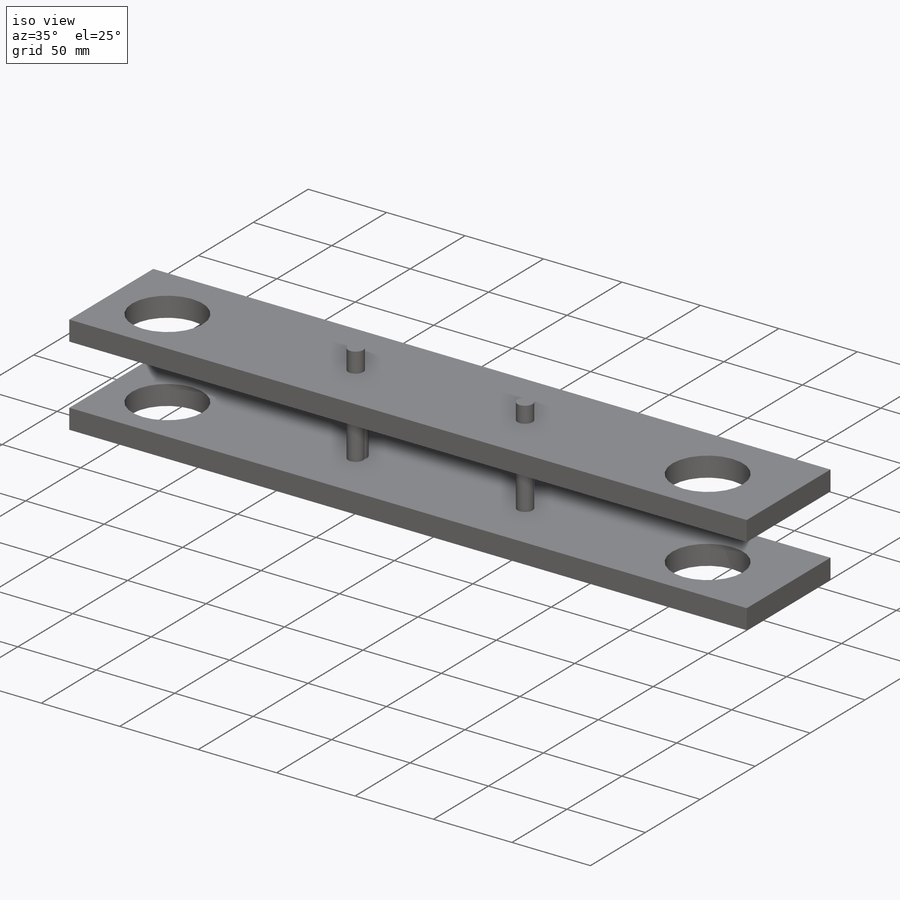
[diagram: iso view]
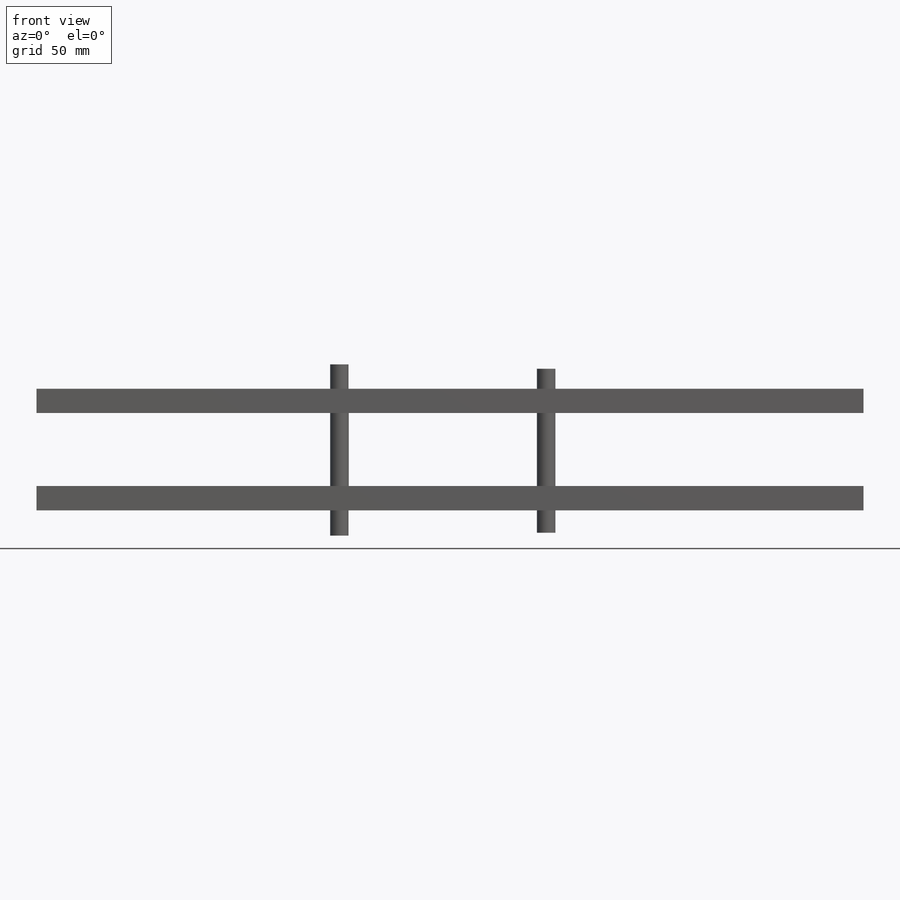
[diagram: front view]
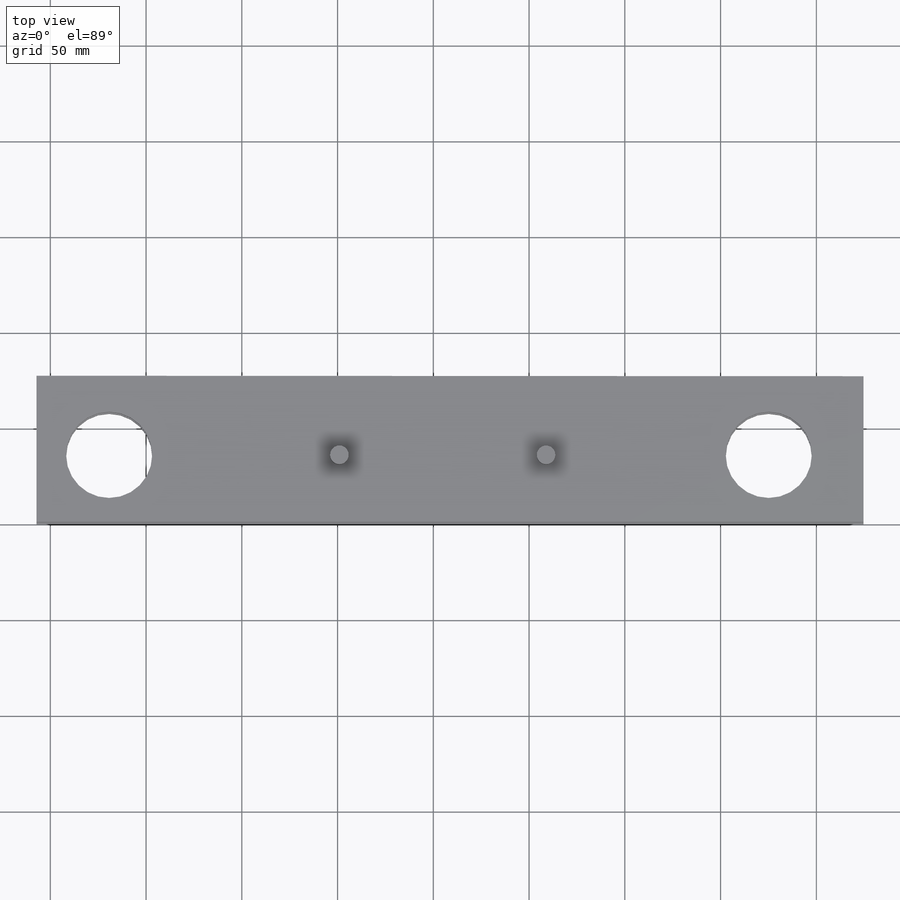
[diagram: top view]
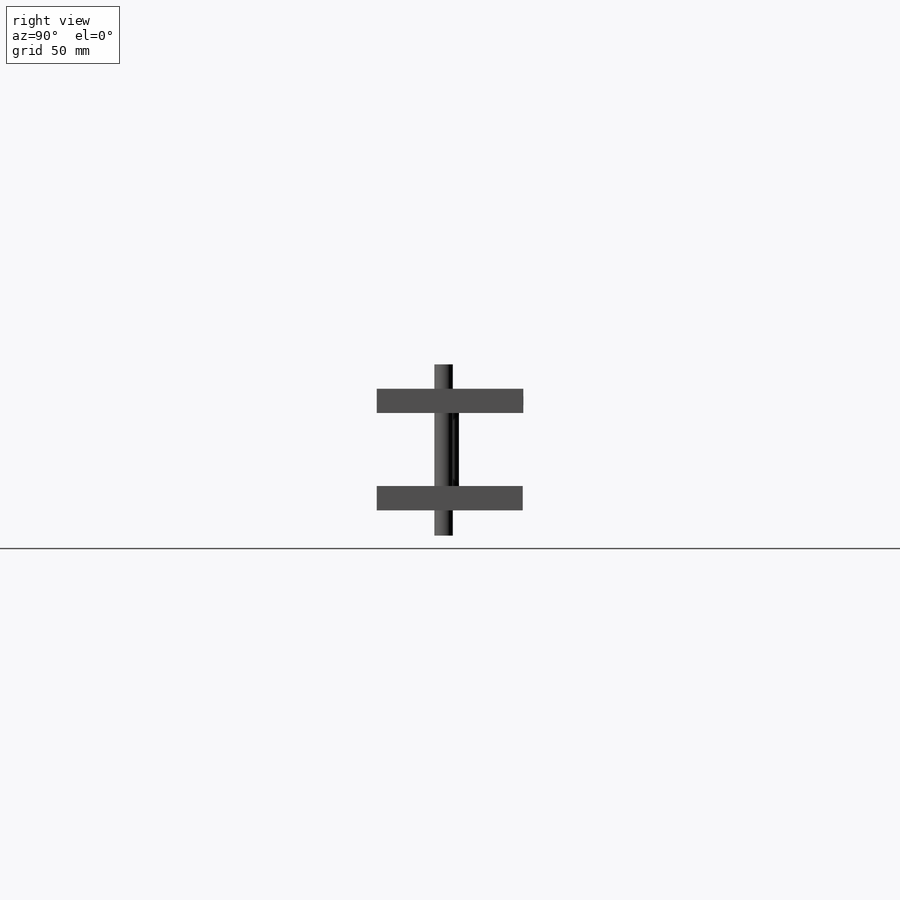
[diagram: right view]
SOLIDWORKS PART (.sldprt)
format: sldprt  version: not decoded by parser v0  size: 234,496 bytes
history: native  units: mm
features: sketch x9, extrude x5, plane x4, cut_extrude x4, material x1 (+8 scaffold rows collapsed)
feature tree (31):
  scaffold x8  (default folders/planes/origin — collapsed)
  material  "Material <sin especificar>"
  plane  "Alzado"
  plane  "Planta"
  plane  "Vista lateral"
  sketch  "Croquis1"  dims[D3=9.652mm D4=9.652mm D5=44.958mm D1=431.8mm D2=76.2mm]
  extrude  "Saliente-Extruir2"  Depth=12.7mm
  sketch  "Croquis3"  dims[c1.D1=44.958mm c1.D2=44.958mm c2.D1=44.958mm c2.D2=9.652mm c2.D3=9.652mm]
  extrude  "Saliente-Extruir4"  Depth=63.5mm
  sketch  "Croquis4"  dims[D1=44.958mm]
  cut_extrude  "Cortar-Extruir3"  Depth=219.71mm
  sketch  "Croquis6"  dims[D1=44.958mm]
  cut_extrude  "Cortar-Extruir5"  Depth=180.594mm
  plane  "Plano1"  Offset=38.1mm
  sketch  "Croquis7"  dims[D1=431.8mm D2=76.2mm]
  extrude  "Saliente-Extruir5"  Depth=12.7mm
  sketch  "Croquis8"  dims[D1=44.958mm]
  cut_extrude  "Cortar-Extruir7"  Depth=115.062mm
  sketch  "Croquis9"  dims[D1=44.958mm]
  cut_extrude  "Cortar-Extruir8"  Depth=153.162mm
  sketch  "Croquis10"  dims[D1=9.652mm]
  extrude  "Saliente-Extruir6"  Depth=75.184mm
  sketch  "Croquis12"  dims[D2=9.652mm D1=107.95mm D3=107.95mm]
  extrude  "Saliente-Extruir7"  Depth=13.208mm
decode coverage: 18 of 18 modeling features carry decoded parameters
note: suppression state not decoded; provenance and decode notes live in map.json
